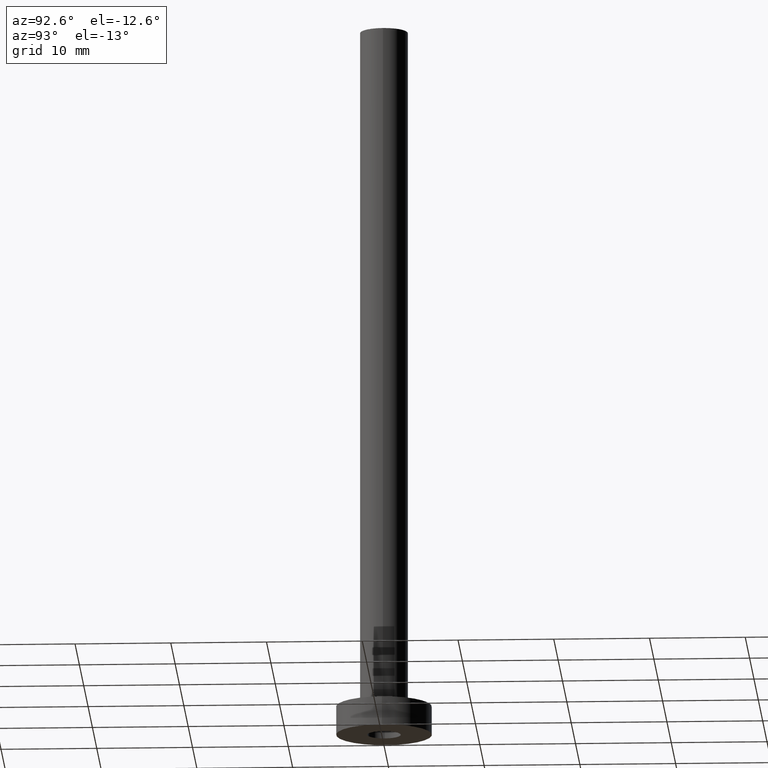
[diagram: clean part render]
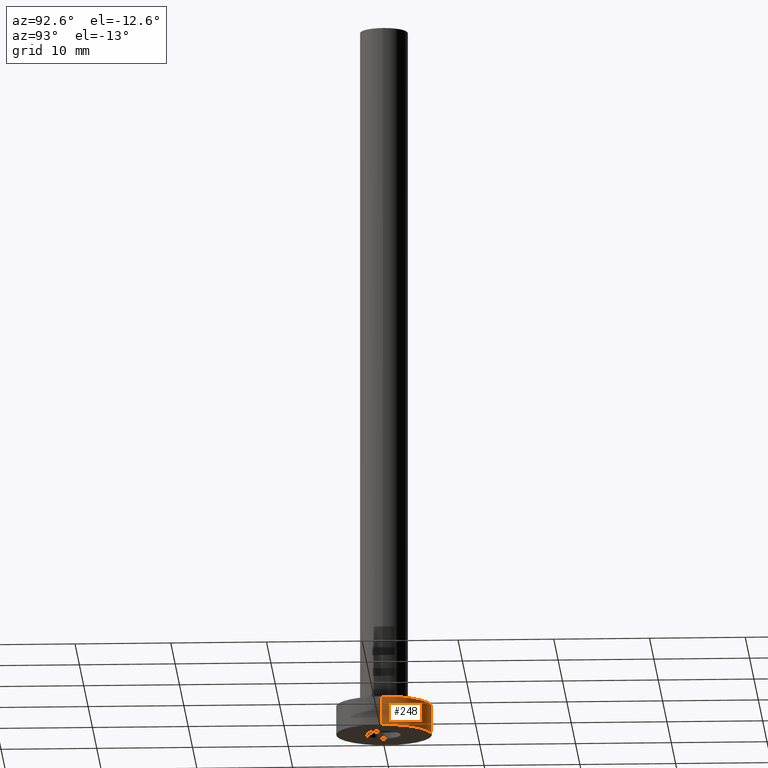
[diagram: same view with one face highlighted and labeled with its STEP entity id]
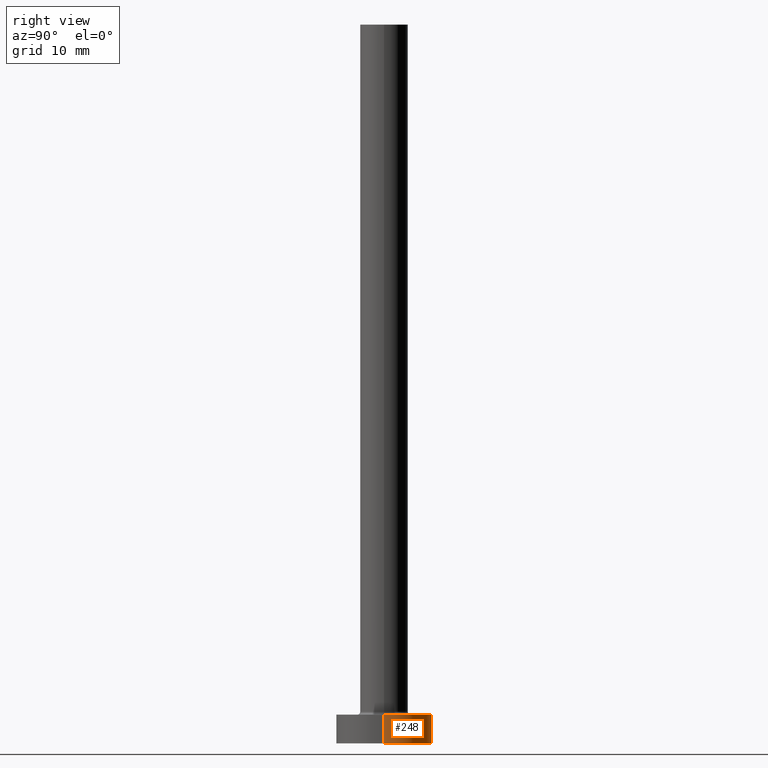
[diagram: same view with one face highlighted and labeled with its STEP entity id]
A machine part, auxiliary view. The second image highlights one B-rep face of the part: STEP entity #248.
A second angle (right view) of the same face is appended — the face is thin or edge-on in the first view.
In plain terms, the highlighted cylindrical surface (partial cylindrical patch) has radius 5 mm, axis along (-0, -0, -1).
Its self-contained STEP definition (entity closure, byte-faithful):
#5 = DIRECTION ( 'NONE',  ( 1.000000000000000000, 0.000000000000000000, 0.000000000000000000 ) ) ;
#18 = DIRECTION ( 'NONE',  ( -0.000000000000000000, -0.000000000000000000, -1.000000000000000000 ) ) ;
#45 = VERTEX_POINT ( 'NONE', #398 ) ;
#58 = CIRCLE ( 'NONE', #174, 5.000000000000000000 ) ;
#63 = VERTEX_POINT ( 'NONE', #333 ) ;
#66 = EDGE_CURVE ( 'NONE', #45, #135, #437, .T. ) ;
#87 = EDGE_CURVE ( 'NONE', #63, #135, #58, .T. ) ;
#93 = CARTESIAN_POINT ( 'NONE',  ( -5.000000000000000000, 0.000000000000000000, 0.000000000000000000 ) ) ;
#115 = DIRECTION ( 'NONE',  ( 1.000000000000000000, 0.000000000000000000, 0.000000000000000000 ) ) ;
#131 = EDGE_LOOP ( 'NONE', ( #411, #418, #150, #263 ) ) ;
#134 = CARTESIAN_POINT ( 'NONE',  ( 5.000000000000000000, 6.123233995736766282E-16, 3.000000000000000000 ) ) ;
#135 = VERTEX_POINT ( 'NONE', #93 ) ;
#137 = VECTOR ( 'NONE', #18, 1000.000000000000000 ) ;
#150 = ORIENTED_EDGE ( 'NONE', *, *, #87, .T. ) ;
#166 = CARTESIAN_POINT ( 'NONE',  ( 0.000000000000000000, 0.000000000000000000, 3.000000000000000000 ) ) ;
#174 = AXIS2_PLACEMENT_3D ( 'NONE', #295, #221, #115 ) ;
#177 = CARTESIAN_POINT ( 'NONE',  ( 0.000000000000000000, 0.000000000000000000, 3.000000000000000000 ) ) ;
#201 = FACE_OUTER_BOUND ( 'NONE', #131, .T. ) ;
#217 = AXIS2_PLACEMENT_3D ( 'NONE', #177, #324, #5 ) ;
#221 = DIRECTION ( 'NONE',  ( 0.000000000000000000, 0.000000000000000000, 1.000000000000000000 ) ) ;
#238 = DIRECTION ( 'NONE',  ( -0.000000000000000000, -0.000000000000000000, -1.000000000000000000 ) ) ;
#248 = ADVANCED_FACE ( 'NONE', ( #201 ), #344, .T. ) ;
#260 = AXIS2_PLACEMENT_3D ( 'NONE', #166, #238, #416 ) ;
#263 = ORIENTED_EDGE ( 'NONE', *, *, #66, .F. ) ;
#293 = EDGE_CURVE ( 'NONE', #334, #63, #461, .T. ) ;
#295 = CARTESIAN_POINT ( 'NONE',  ( 0.000000000000000000, 0.000000000000000000, 0.000000000000000000 ) ) ;
#318 = VECTOR ( 'NONE', #422, 1000.000000000000000 ) ;
#321 = CARTESIAN_POINT ( 'NONE',  ( 5.000000000000000000, 6.123233995736766282E-16, 3.000000000000000000 ) ) ;
#324 = DIRECTION ( 'NONE',  ( 0.000000000000000000, 0.000000000000000000, 1.000000000000000000 ) ) ;
#333 = CARTESIAN_POINT ( 'NONE',  ( 5.000000000000000000, 6.123233995736766282E-16, 0.000000000000000000 ) ) ;
#334 = VERTEX_POINT ( 'NONE', #134 ) ;
#344 = CYLINDRICAL_SURFACE ( 'NONE', #260, 5.000000000000000000 ) ;
#357 = CIRCLE ( 'NONE', #217, 5.000000000000000000 ) ;
#396 = CARTESIAN_POINT ( 'NONE',  ( -5.000000000000000000, 0.000000000000000000, 3.000000000000000000 ) ) ;
#398 = CARTESIAN_POINT ( 'NONE',  ( -5.000000000000000000, 0.000000000000000000, 3.000000000000000000 ) ) ;
#411 = ORIENTED_EDGE ( 'NONE', *, *, #428, .F. ) ;
#416 = DIRECTION ( 'NONE',  ( -1.000000000000000000, 0.000000000000000000, 0.000000000000000000 ) ) ;
#418 = ORIENTED_EDGE ( 'NONE', *, *, #293, .T. ) ;
#422 = DIRECTION ( 'NONE',  ( -0.000000000000000000, -0.000000000000000000, -1.000000000000000000 ) ) ;
#428 = EDGE_CURVE ( 'NONE', #334, #45, #357, .T. ) ;
#437 = LINE ( 'NONE', #396, #137 ) ;
#461 = LINE ( 'NONE', #321, #318 ) ;